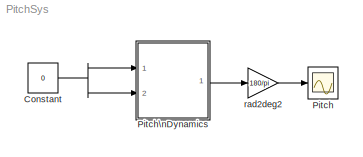
MODEL PitchSys
KIND model
BLOCK [Constant] Constant
  SID = 351
  Value = 0
BLOCK [Scope] Pitch
  DataFormat = StructureWithTime
  Floating = off
  LimitDataPoints = off
  NumInputPorts = 1
  Ports = [1]
  SID = 256
  SampleTime = 0
  SaveName = pitch
  SaveToWorkspace = on
  ShowLegends = off
  TimeRange = 10
  YMax = 30
  YMin = -30
  ZoomMode = xonly
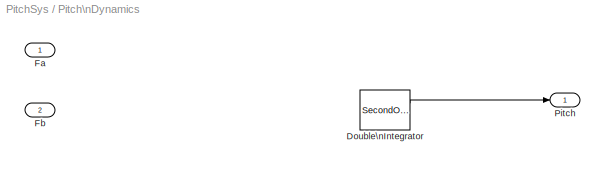
BLOCK [SubSystem] Pitch\nDynamics
  Ports = [2, 1]
  RequestExecContextInheritance = off
  SID = 369
BLOCK [SecondOrderIntegrator] Pitch\nDynamics/Double\nIntegrator
  ICX = p_lim_u
  LimitX = on
  LowerLimitX = p_lim_l
  Ports = [1, 2]
  SID = 373
  UpperLimitX = p_lim_u
BLOCK [Inport] Pitch\nDynamics/Fa
  IconDisplay = Port number
  SID = 370
BLOCK [Inport] Pitch\nDynamics/Fb
  IconDisplay = Port number
  Port = 2
  SID = 371
BLOCK [Outport] Pitch\nDynamics/Pitch
  IconDisplay = Port number
  SID = 380
BLOCK [Gain] rad2deg2
  Gain = 180/pi
  SID = 273
NET Constant:1 -> Pitch\nDynamics:1, Pitch\nDynamics:2
LINE Pitch\nDynamics/Double\nIntegrator:1 -> Pitch\nDynamics/Pitch:1
LINE Pitch\nDynamics:1 -> rad2deg2:1
LINE rad2deg2:1 -> Pitch:1
note: NET lines group one-source signal fan-out (src -> all destinations, sorted); 1:1 wires keep LINE
